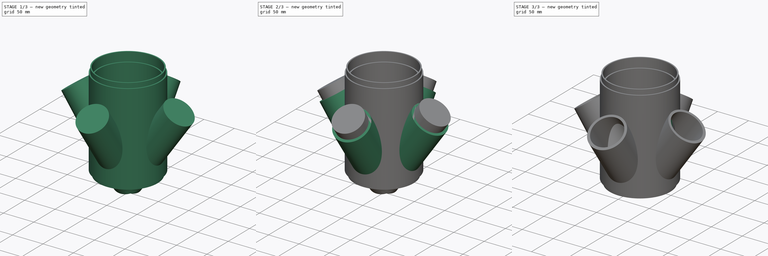
[diagram: build sequence overview — one tinted view per stage of 3, left to right]
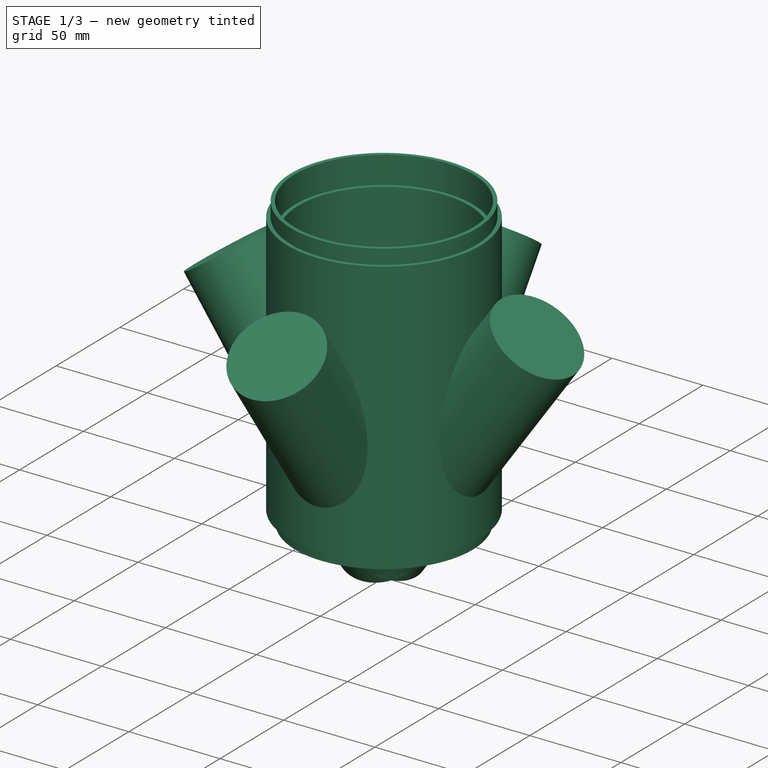
[diagram: stage 1 of 3 — iso view after this stage's code; geometry added in this stage tinted green]
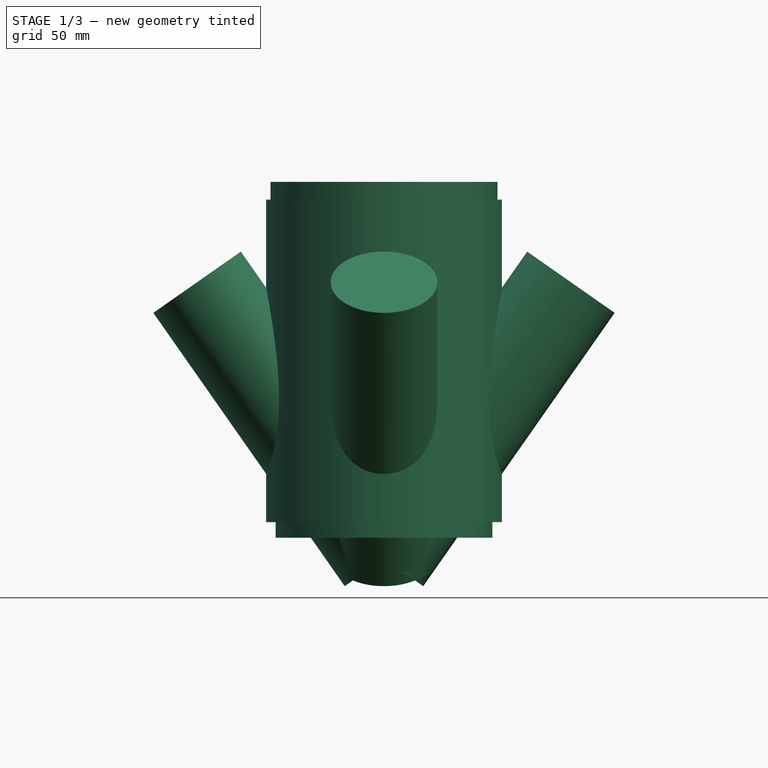
[diagram: stage 1 of 3 — front view after this stage's code; geometry added in this stage tinted green]
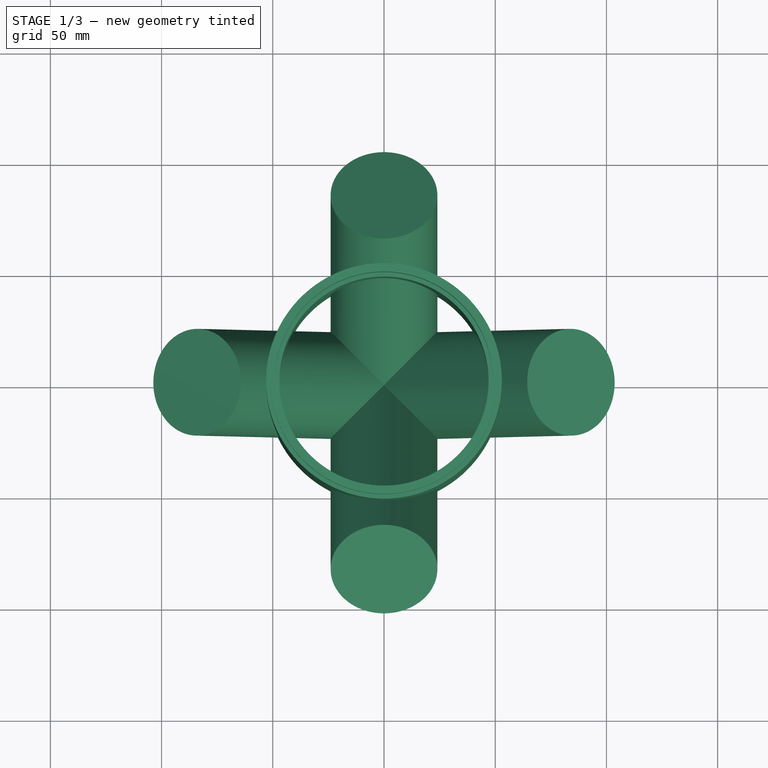
[diagram: stage 1 of 3 — top view after this stage's code; geometry added in this stage tinted green]
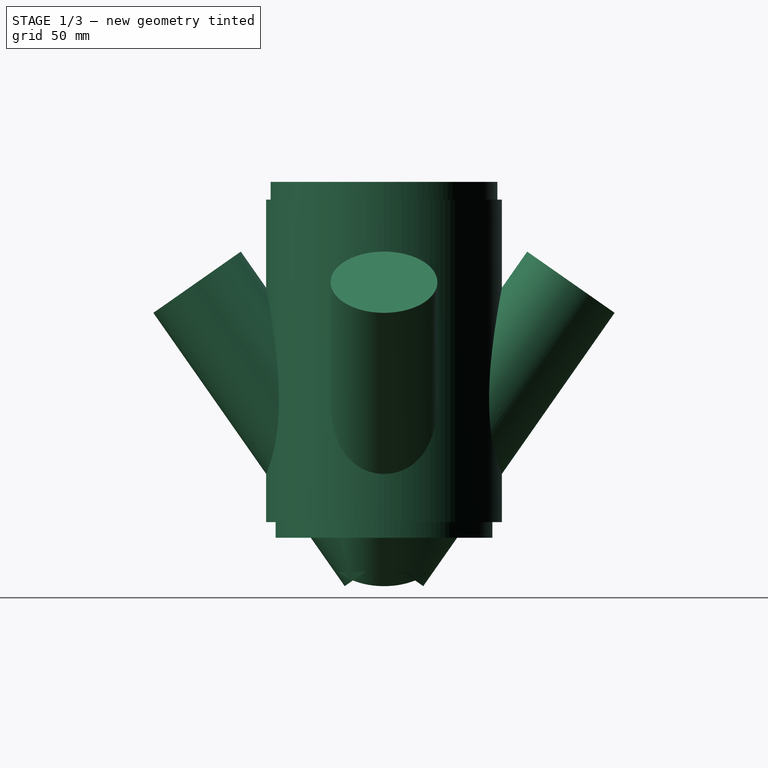
[diagram: stage 1 of 3 — right view after this stage's code; geometry added in this stage tinted green]
FCSTD DOCUMENT  (FreeCAD 0.20R28720 (Git))
Label: Aeroponics_Modular_4-Tower_Tower-Section
License: All rights reserved
LicenseURL: http://en.wikipedia.org/wiki/All_rights_reserved
objects: Sketcher::SketchObject×4, PartDesign::Revolution×3, PartDesign::Body×3, PartDesign::Line×2, PartDesign::PolarPattern×2, Part::Cut×2, PartDesign::Pad×1
note: 21 computed .brp shape members not serialized (recipe doc carries the construction recipe); baked Part::Feature solids carry a one-line shape summary decoded from their .brp

FEATURE [Sketcher::SketchObject] Sketch
  FullyConstrained = true
  MapMode = 5
  Placement = pos=(0,0,0) rot=(1,0,0;1.5708rad)
  Support = -> [XZ_Plane]
  sketch-geometry (12):
    g0: LineSegment StartX=47 StartY=145 StartZ=0 EndX=47 EndY=0 EndZ=0
    g1: LineSegment StartX=47 StartY=145 StartZ=0 EndX=49 EndY=145 EndZ=0
    g2: LineSegment StartX=49 StartY=145 StartZ=0 EndX=49 EndY=160 EndZ=0
    g3: LineSegment StartX=49 StartY=160 StartZ=0 EndX=51 EndY=160 EndZ=0
    g4: LineSegment StartX=51 StartY=160 StartZ=0 EndX=51 EndY=152 EndZ=0
    g5: LineSegment StartX=51 StartY=152 StartZ=0 EndX=53 EndY=152 EndZ=0
    g6: LineSegment StartX=53 StartY=152 StartZ=0 EndX=53 EndY=7 EndZ=0
    g7: LineSegment StartX=53 StartY=7 StartZ=0 EndX=51.25 EndY=7 EndZ=0
    g8: LineSegment StartX=51.25 StartY=7 StartZ=0 EndX=51.25 EndY=15 EndZ=0
    g9: LineSegment StartX=51.25 StartY=15 StartZ=0 EndX=48.75 EndY=15 EndZ=0
    g10: LineSegment StartX=48.75 StartY=15 StartZ=0 EndX=48.75 EndY=0 EndZ=0
    g11: LineSegment StartX=48.75 StartY=0 StartZ=0 EndX=47 EndY=0 EndZ=0
  constraints (36):
    c: Vertical(g0)
    c: Coincident(g1,g0)
    c: Horizontal(g1)
    c: Coincident(g2,g1)
    c: Vertical(g2)
    c: Coincident(g3,g2)
    c: Horizontal(g3)
    c: Coincident(g4,g3)
    c: Vertical(g4)
    c: Coincident(g5,g4)
    c: Horizontal(g5)
    c: Coincident(g6,g5)
    c: Vertical(g6)
    c: Coincident(g7,g6)
    c: Horizontal(g7)
    c: Coincident(g8,g7)
    c: Vertical(g8)
    c: Coincident(g9,g8)
    c: Horizontal(g9)
    c: Coincident(g10,g9)
    c: Coincident(g11,g10)
    c: Horizontal(g11)
    c: Coincident(g0,g11)
    c: Vertical(g10)
    c: DistanceX(g-1,g6) = 53
    c: DistanceX(g7,g7) = 1.75
    c: DistanceX(g9,g9) = 2.5
    c: DistanceX(g11,g11) = 1.75
    c: Equal(g8,g4)
    c: Equal(g10,g2)
    c: DistanceY(g-1,g0) = 0
    c: DistanceY(g10,g10) = 15
    c: DistanceY(g8,g8) = 8
    c: DistanceY(g-1,g2) = 160
    c: DistanceX(g3,g3) = 2
    c: DistanceX(g1,g1) = 2
FEATURE [PartDesign::Revolution] Revolution
  Angle = 360
  Axis = (0,-2e-16,1)
  Base = (0,0,0)
  Placement = pos=(0,0,0) rot=(1,0,0;1.5708rad)
  Profile = -> Sketch
  ReferenceAxis = -> Sketch [V_Axis]
  Reversed = true
FEATURE [PartDesign::Body] Body
  Group = -> [Sketch,Revolution,Sketch001,DatumLine,Revolution001,PolarPattern]
  Origin = -> Origin
  Tip = -> PolarPattern
FEATURE [Sketcher::SketchObject] Sketch003
  FullyConstrained = true
  MapMode = 5
  Placement = pos=(0,0,0) rot=(1,0,0;1.5708rad)
  Support = -> [XZ_Plane002]
  sketch-geometry (4):
    g0: LineSegment StartX=84.0365 StartY=114.873 StartZ=0 EndX=-2 EndY=-8 EndZ=0
    g1: LineSegment StartX=-2 StartY=-8 StartZ=0 EndX=17.6596 EndY=-21.7658 EndZ=0
    g2: LineSegment StartX=17.6596 StartY=-21.7658 StartZ=0 EndX=103.696 EndY=101.107 EndZ=0
    g3: LineSegment StartX=84.0365 StartY=114.873 StartZ=0 EndX=103.696 EndY=101.107 EndZ=0
  constraints (12):
    c: Coincident(g1,g0)
    c: Coincident(g2,g1)
    c: Coincident(g3,g0)
    c: Coincident(g3,g2)
    c: Angle(g3) = -0.610865
    c: Angle(g0,g3) = 1.5708
    c: Equal(g0,g2)
    c: Equal(g3,g1)
    c: DistanceX(g-1,g0) = -2
    c: DistanceY(g-1,g0) = -8
    c: Distance(g3) = 24
    c: Distance(g2) = 150
FEATURE [PartDesign::Line] DatumLine001
  AttacherType = Attacher::AttachEngineLine
  Length = 20
  MapMode = 29
  Placement = pos=(2.41675,4e-16,-1.69223) rot=(-0.690162,0.690162,0.217607;3.57013rad)
  ResizeMode = 0
  Support = -> [Sketch003]
FEATURE [PartDesign::Revolution] Revolution002
  Angle = 360
  Axis = (-0.573576,2e-16,-0.819152)
  Base = (2.41675,4e-16,-1.69223)
  Placement = pos=(0,0,0) rot=(1,0,0;1.5708rad)
  Profile = -> Sketch003
  ReferenceAxis = -> DatumLine001
  Reversed = true
FEATURE [PartDesign::PolarPattern] PolarPattern001
  Angle = 360
  Axis = -> Sketch003 [V_Axis]
  BaseFeature = -> Revolution002
  Occurrences = 4
  Originals = -> [Revolution002]
  Overlap = 0
  Placement = pos=(0,0,0) rot=(1,0,0;1.5708rad)
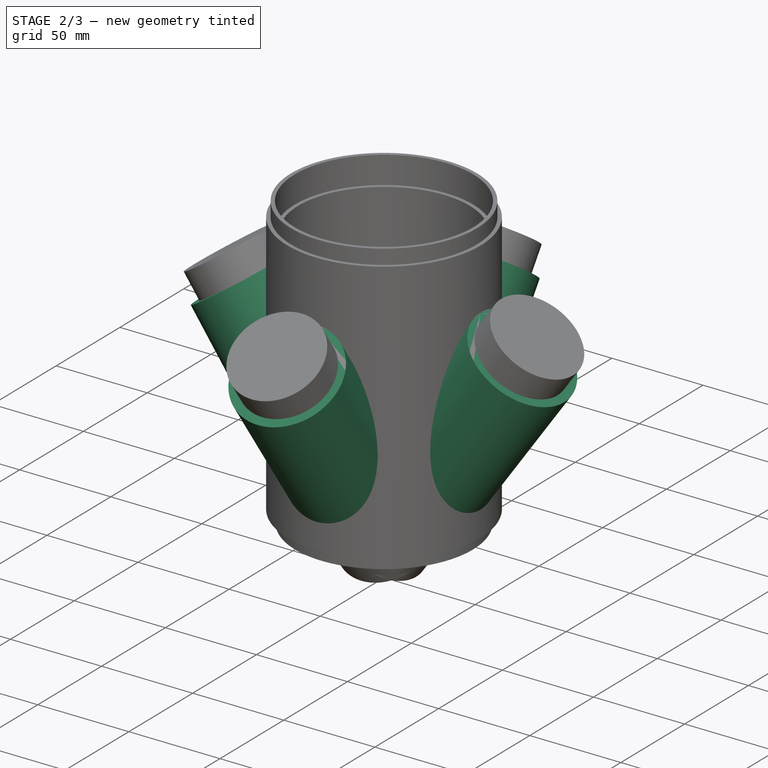
[diagram: stage 2 of 3 — iso view after this stage's code; geometry added in this stage tinted green]
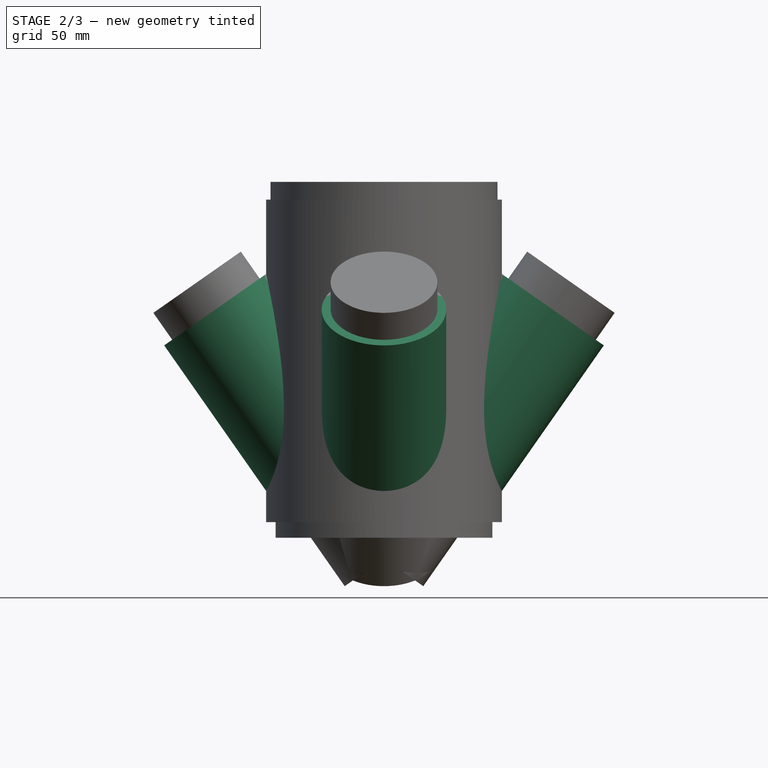
[diagram: stage 2 of 3 — front view after this stage's code; geometry added in this stage tinted green]
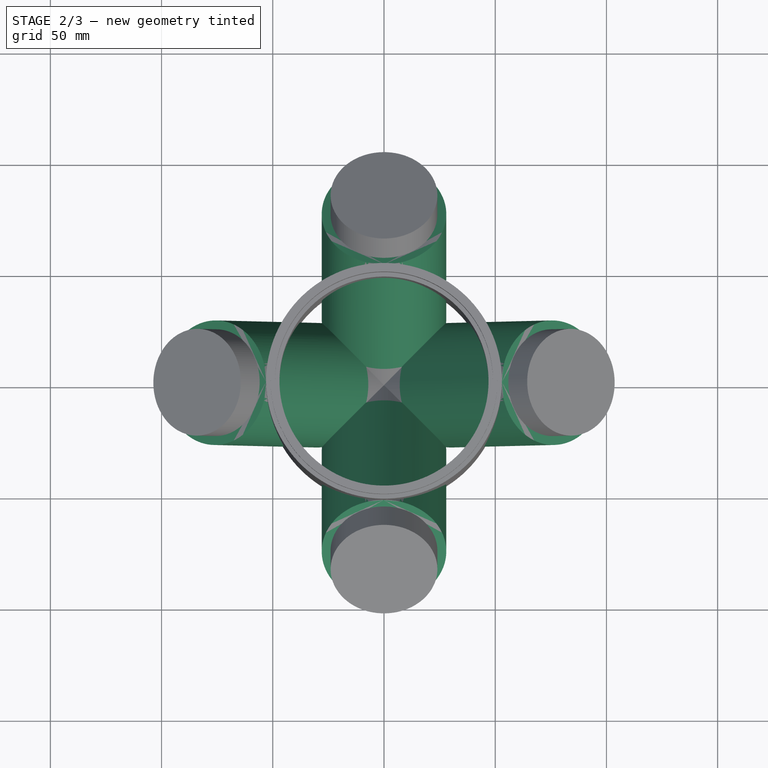
[diagram: stage 2 of 3 — top view after this stage's code; geometry added in this stage tinted green]
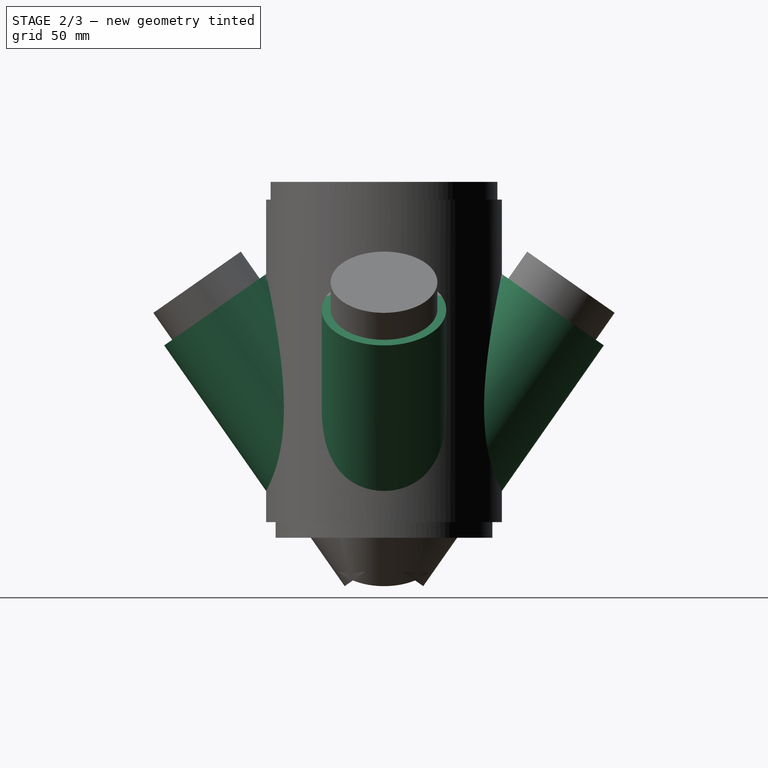
[diagram: stage 2 of 3 — right view after this stage's code; geometry added in this stage tinted green]
FEATURE [Sketcher::SketchObject] Sketch001
  FullyConstrained = true
  MapMode = 5
  Placement = pos=(0,0,0) rot=(1,0,0;1.5708rad)
  Support = -> [XZ_Plane]
  sketch-geometry (4):
    g0: LineSegment StartX=75.8861 StartY=102.532 StartZ=0 EndX=98.8224 EndY=86.472 EndZ=0
    g1: LineSegment StartX=98.8224 StartY=86.472 StartZ=0 EndX=52.9363 EndY=20.9399 EndZ=0
    g2: LineSegment StartX=52.9363 StartY=20.9399 StartZ=0 EndX=30 EndY=37 EndZ=0
    g3: LineSegment StartX=30 StartY=37 StartZ=0 EndX=75.8861 EndY=102.532 EndZ=0
  constraints (12):
    c: Coincident(g1,g0)
    c: Coincident(g2,g1)
    c: Coincident(g3,g2)
    c: Coincident(g3,g0)
    c: Distance(g0) = 28
    c: Equal(g2,g0)
    c: Equal(g3,g1)
    c: Angle(g0) = -0.610865
    c: Angle(g3,g0) = 1.5708
    c: Distance(g1) = 80
    c: DistanceY(g-1,g2) = 37
    c: DistanceX(g-1,g2) = 30
FEATURE [PartDesign::Line] DatumLine
  AttacherType = Attacher::AttachEngineLine
  Length = 20
  MapMode = 29
  Placement = pos=(2.74599,4e-16,-1.92276) rot=(0.287968,0.287968,0.913318;1.66134rad)
  ResizeMode = 0
  Support = -> [Sketch001]
FEATURE [PartDesign::Revolution] Revolution001
  Angle = 360
  Axis = (0.573576,-1e-16,0.819152)
  Base = (2.74599,4e-16,-1.92276)
  BaseFeature = -> Revolution
  Placement = pos=(0,0,0) rot=(1,0,0;1.5708rad)
  Profile = -> Sketch001
  ReferenceAxis = -> DatumLine
  Reversed = true
FEATURE [PartDesign::PolarPattern] PolarPattern
  Angle = 360
  Axis = -> Sketch001 [V_Axis]
  BaseFeature = -> Revolution001
  Occurrences = 4
  Originals = -> [Revolution001]
  Overlap = 0
  Placement = pos=(0,0,0) rot=(1,0,0;1.5708rad)
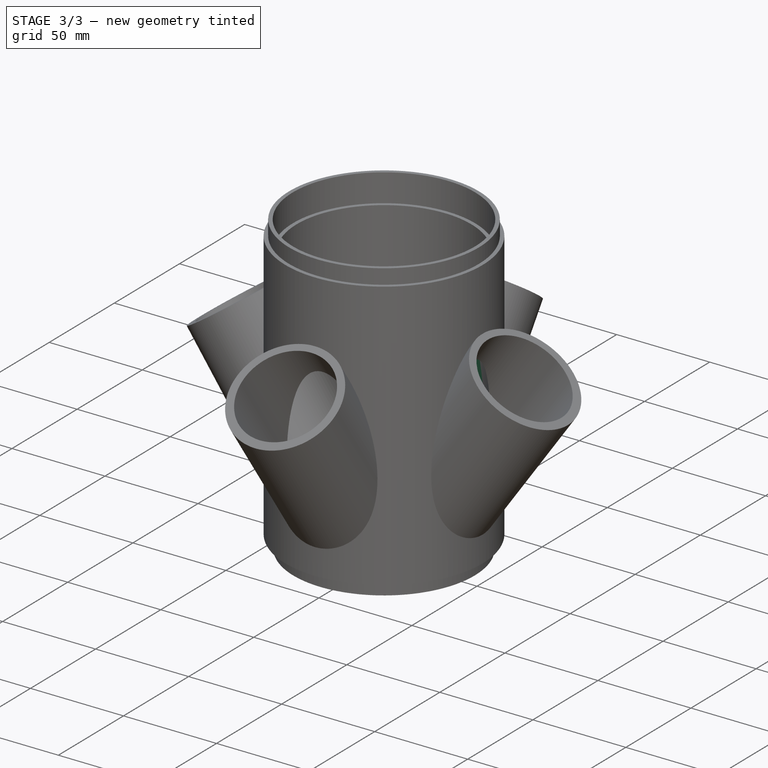
[diagram: stage 3 of 3 — iso view after this stage's code; geometry added in this stage tinted green]
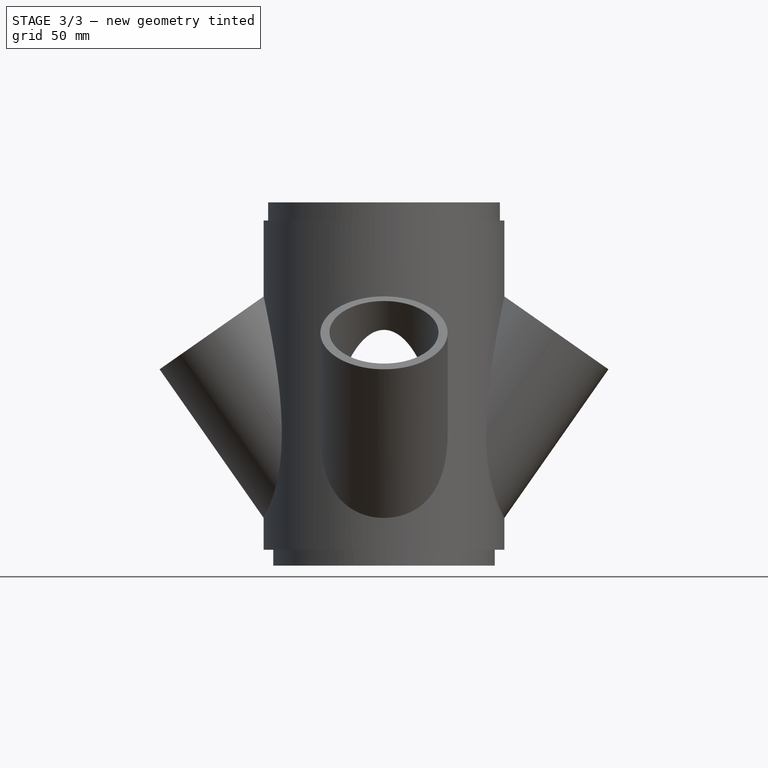
[diagram: stage 3 of 3 — front view after this stage's code; geometry added in this stage tinted green]
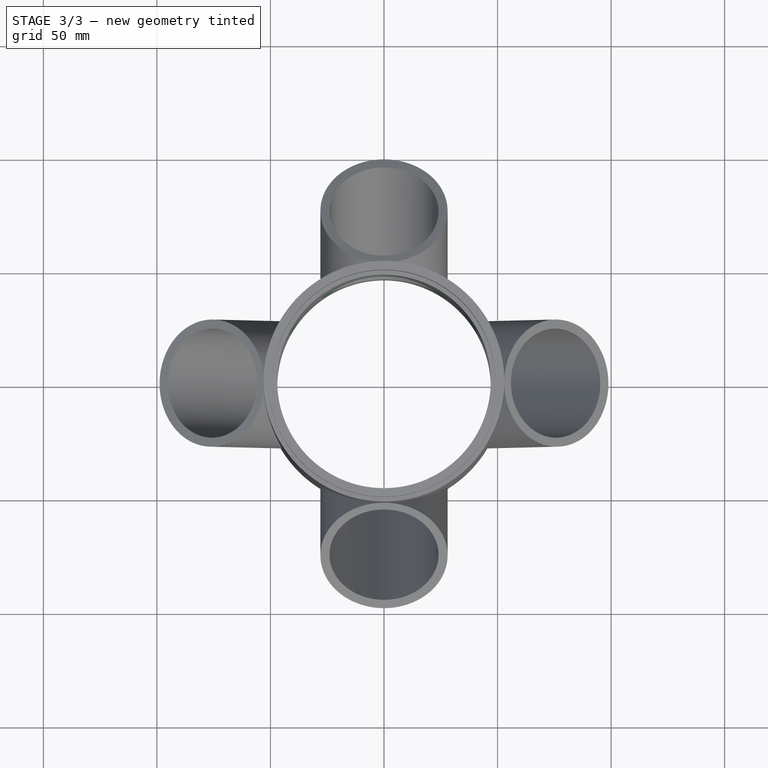
[diagram: stage 3 of 3 — top view after this stage's code; geometry added in this stage tinted green]
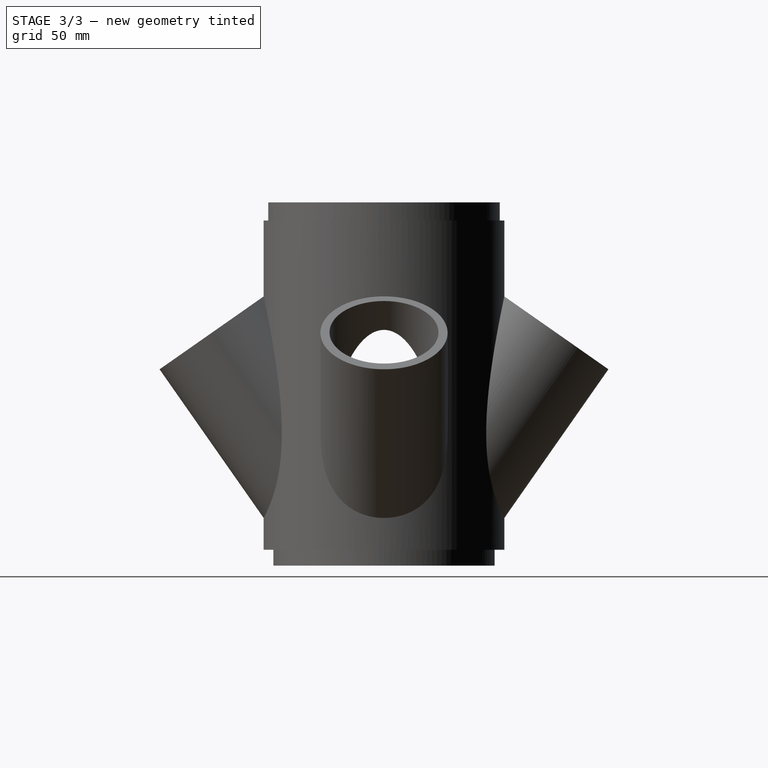
[diagram: stage 3 of 3 — right view after this stage's code; geometry added in this stage tinted green]
FEATURE [PartDesign::Body] Body002
  Group = -> [Sketch003,DatumLine001,Revolution002,PolarPattern001]
  Origin = -> Origin002
  Tip = -> PolarPattern001
FEATURE [Sketcher::SketchObject] Sketch004
  FullyConstrained = true
  MapMode = 5
  Support = -> [XY_Plane003]
  sketch-geometry (1):
    g0: Circle CenterX=0 CenterY=0 CenterZ=0 NormalX=0 NormalY=0 NormalZ=1 AngleXU=0 Radius=47
  constraints (2):
    c: Coincident(g0,g-1)
    c: Diameter(g0) = 94
FEATURE [PartDesign::Pad] Pad
  Direction = (0,0,1)
  Length = 150
  Length2 = 10
  Profile = -> Sketch004
  ReferenceAxis = -> Sketch004 [N_Axis]
  Type = 0
FEATURE [PartDesign::Body] Body003
  Group = -> [Sketch004,Pad]
  Origin = -> Origin003
  Tip = -> Pad
FEATURE [Part::Cut] Cut
  Base = -> Body
  Tool = -> Body002
FEATURE [Part::Cut] Cut001
  Base = -> Cut
  Tool = -> Body003
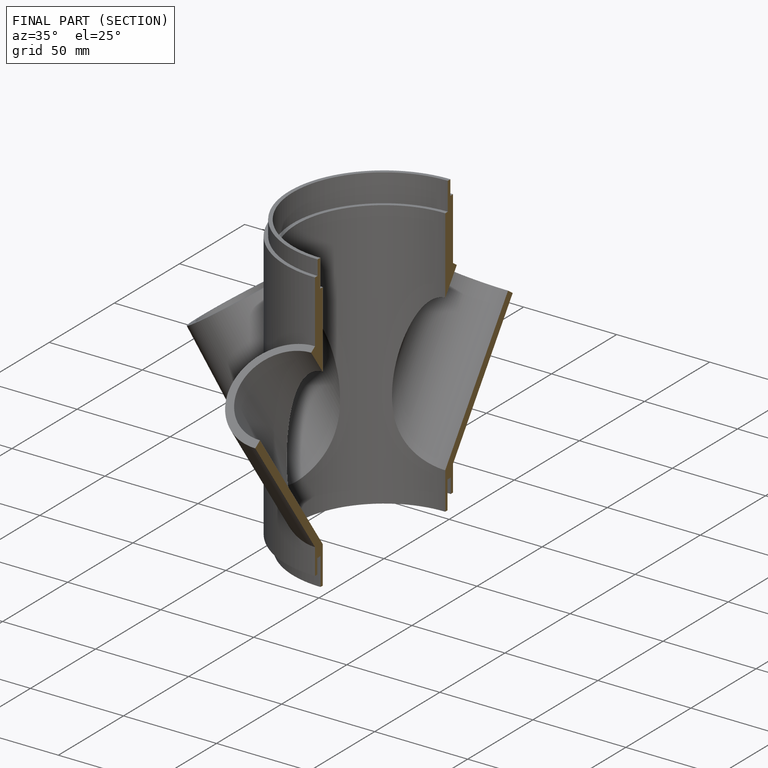
[diagram: finished part — half-section view (interior)]
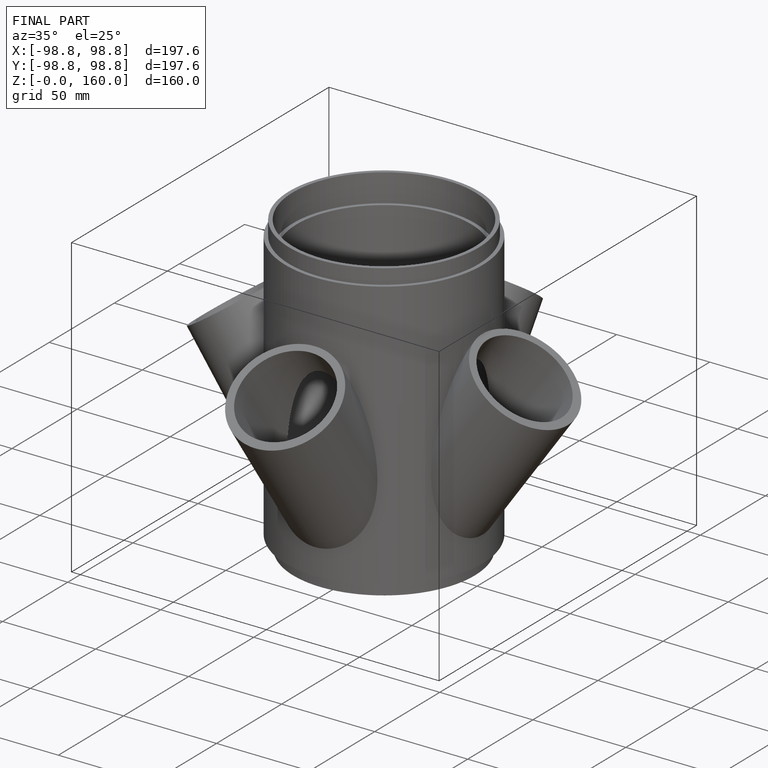
[diagram: finished part — iso view with bounding-box wireframe]
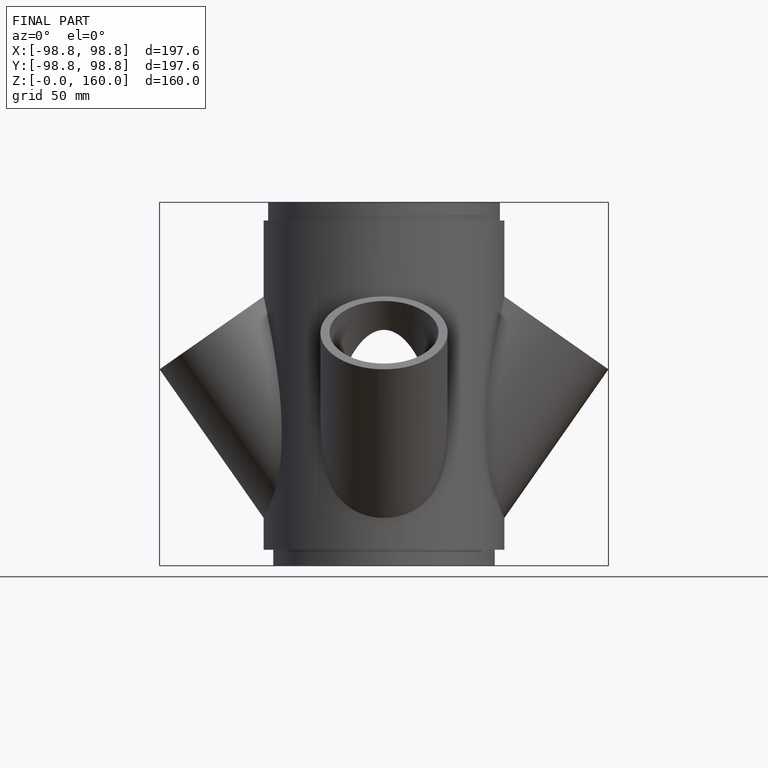
[diagram: finished part — front view with bounding-box wireframe]
